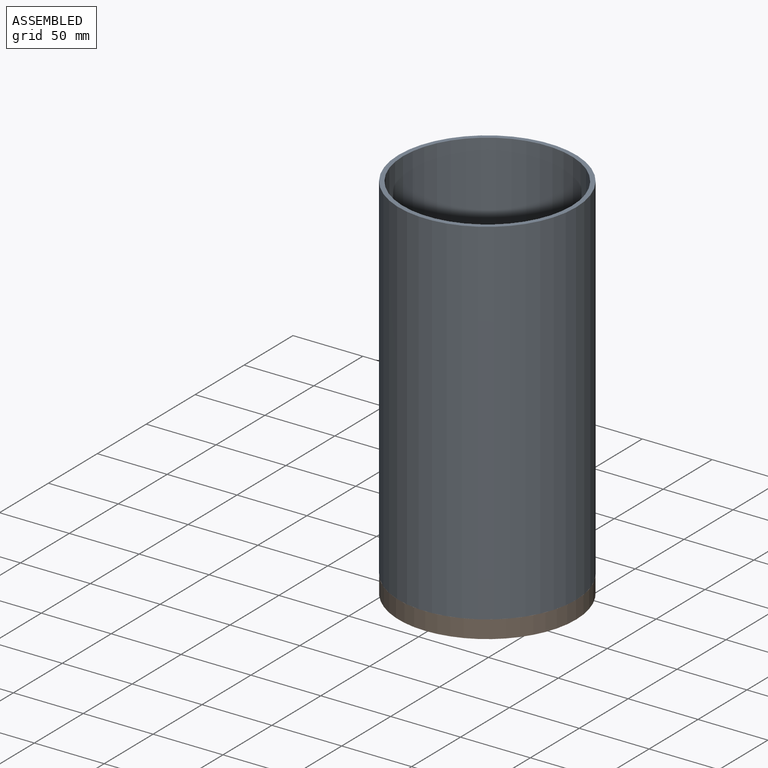
[diagram: assembled view]
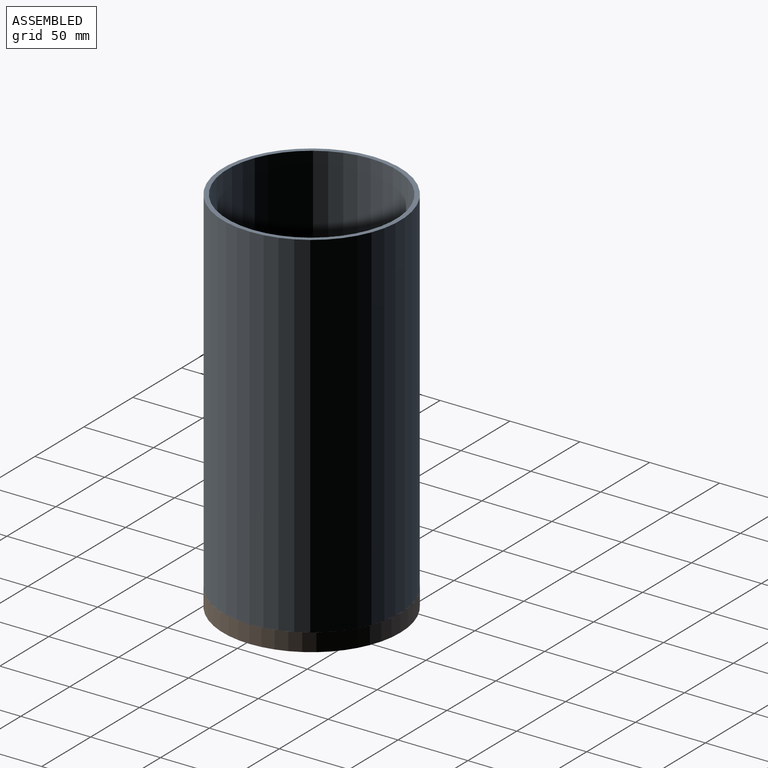
[diagram: assembled view, second angle]
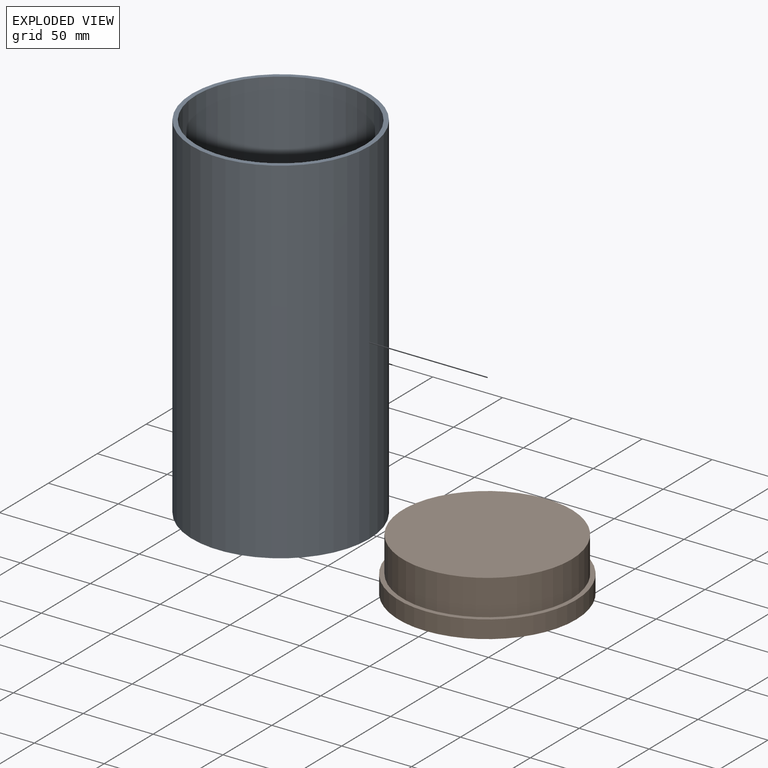
[diagram: exploded view]
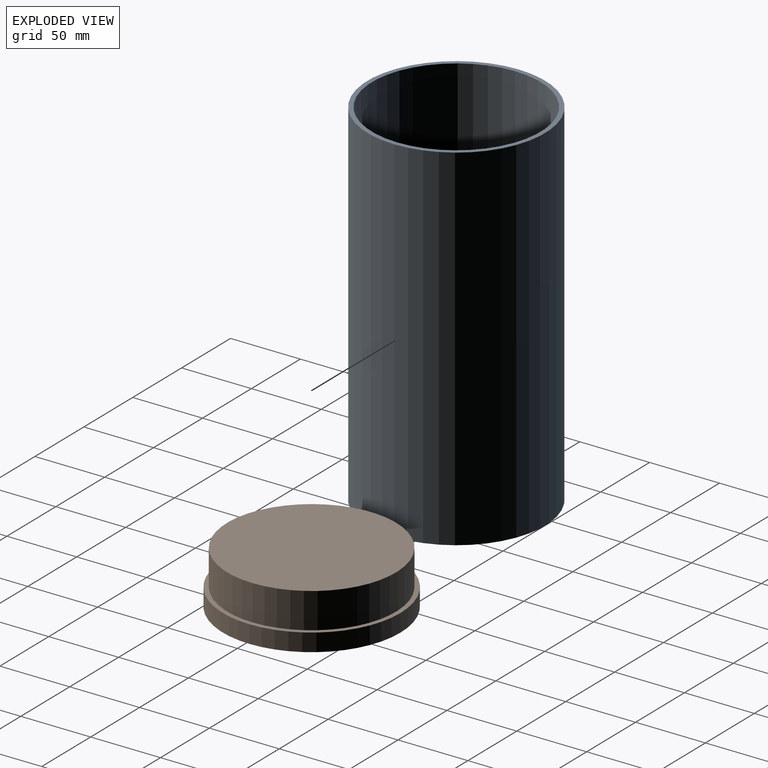
[diagram: exploded view, second angle]
ASSEMBLY  parts=2 mates=2
PART A: 4 faces, bbox 127x127x254 mm
  f0: cylinder r=63.5mm len=254mm, axis (0,0,-1), area 101341.5mm2, adj f1,f2
  f1: plane 127x127mm, normal (0,0,1), area 1235.1mm2, adj f0,f3
  f2: plane 127x127mm, normal (0,0,-1), area 1235.1mm2, adj f0,f3
  f3: cylinder r=60.32mm len=254mm, axis (0,0,-1), area 96274.4mm2, adj f1,f2
PART B: 5 faces, bbox 127x127x38.1 mm
  f0: cylinder r=63.5mm len=127mm, axis (0,0,1), area 5067.1mm2, adj f1,f2
  f1: plane 127x127mm, normal (0,0,-1), area 12667.7mm2, adj f0
  f2: plane 127x127mm, normal (0,0,1), area 1235.1mm2, adj f0,f3
  f3: cylinder r=60.32mm len=120.65mm, axis (0,0,-1), area 9627.4mm2, adj f2,f4
  f4: plane 120.65x120.65mm, normal (0,0,1), area 11432.6mm2, adj f3
PLACE A t=(247.96,-98.23,619.66)mm fixed
PLACE B t=(247.96,-98.23,619.66)mm
MATE slider A.f0 <-> B.f0  axis (0,0,-1) through (247.96,-98.23,619.66)mm
MATE parallel B.f0 <-> A.f0  axis (0,0,1) through (247.96,-98.23,619.66)mm
